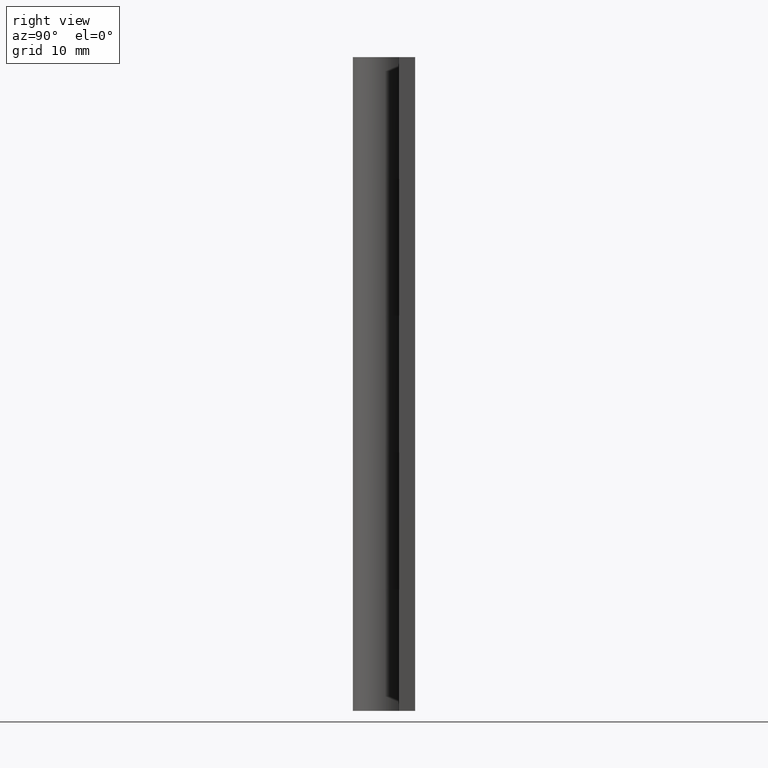
[diagram: clean part render]
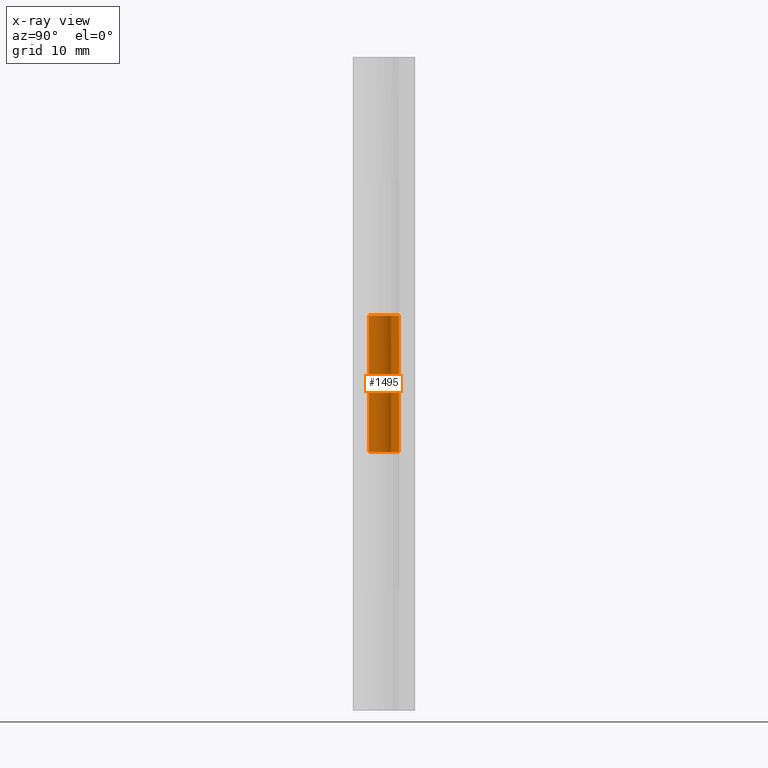
[diagram: x-ray — body ghosted, one internal face saturated and labeled with its STEP entity id]
A machine part, right view, then the same camera in x-ray: the body is ghosted and one INTERNAL B-rep face — a face not visible from any outside direction — is saturated and labeled: STEP entity #1495.
In plain terms, the highlighted face is a freeform B-spline surface patch.
Its self-contained STEP definition (entity closure, byte-faithful):
#834=CARTESIAN_POINT('',(0.0,1.500000000000000,25.699996999999900));
#835=VERTEX_POINT('',#834);
#841=CARTESIAN_POINT('',(1.325797621821316,0.701612903225807,25.699996999999900));
#842=VERTEX_POINT('',#841);
#843=CARTESIAN_POINT('',(0.0,1.500000000000000,25.699996999999900));
#844=CARTESIAN_POINT('',(-1.140047230937307,1.500000000000000,25.699996999999900));
#845=CARTESIAN_POINT('',(-1.445249296287460,0.401565027835593,25.699996999999900));
#846=CARTESIAN_POINT('',(-1.750451361637614,-0.696869944328814,25.699996999999900));
#847=CARTESIAN_POINT('',(-0.773815431857394,-1.284994037892532,25.699996999999900));
#848=CARTESIAN_POINT('',(0.202820497922826,-1.873118131456251,25.699996999999900));
#849=CARTESIAN_POINT('',(1.030933009042892,-1.089576583295442,25.699996999999900));
#850=CARTESIAN_POINT('',(1.859045520162959,-0.306035035134632,25.699996999999900));
#851=CARTESIAN_POINT('',(1.325797621821315,0.701612903225807,25.699996999999900));
#859=(BOUNDED_CURVE()B_SPLINE_CURVE(2,(#843,#844,#845,#846,#847,#848,#849,#850,#851),.UNSPECIFIED.,.F.,.U.)B_SPLINE_CURVE_WITH_KNOTS((3,2,2,2,3),(0.0,0.250000000000000,0.500000000000000,0.750000000000000,1.0),.UNSPECIFIED.)CURVE()GEOMETRIC_REPRESENTATION_ITEM()RATIONAL_B_SPLINE_CURVE((1.0,0.796150117301085,1.0,0.796150117301085,1.0,0.796150117301085,1.0,0.796150117301085,1.0))REPRESENTATION_ITEM(''));
#860=EDGE_CURVE('',#835,#842,#859,.T.);
#1024=CARTESIAN_POINT('',(0.0,1.500000000000000,39.300003000000054));
#1025=VERTEX_POINT('',#1024);
#1067=CARTESIAN_POINT('',(1.325797621821316,0.701612903225807,39.300003000000054));
#1068=VERTEX_POINT('',#1067);
#1074=CARTESIAN_POINT('',(1.325797621821315,0.701612903225807,39.300003000000054));
#1075=CARTESIAN_POINT('',(1.859045520162958,-0.306035035134631,39.300003000000054));
#1076=CARTESIAN_POINT('',(1.030933009042893,-1.089576583295441,39.300003000000054));
#1077=CARTESIAN_POINT('',(0.202820497922826,-1.873118131456252,39.300003000000054));
#1078=CARTESIAN_POINT('',(-0.773815431857395,-1.284994037892532,39.300003000000054));
#1079=CARTESIAN_POINT('',(-1.750451361637615,-0.696869944328813,39.300003000000054));
#1080=CARTESIAN_POINT('',(-1.445249296287460,0.401565027835593,39.300003000000054));
#1081=CARTESIAN_POINT('',(-1.140047230937307,1.500000000000000,39.300003000000054));
#1082=CARTESIAN_POINT('',(0.0,1.500000000000000,39.300003000000054));
#1090=(BOUNDED_CURVE()B_SPLINE_CURVE(2,(#1074,#1075,#1076,#1077,#1078,#1079,#1080,#1081,#1082),.UNSPECIFIED.,.F.,.U.)B_SPLINE_CURVE_WITH_KNOTS((3,2,2,2,3),(0.0,0.250000000000000,0.500000000000000,0.750000000000000,1.0),.UNSPECIFIED.)CURVE()GEOMETRIC_REPRESENTATION_ITEM()RATIONAL_B_SPLINE_CURVE((1.0,0.796150117301085,1.0,0.796150117301085,1.0,0.796150117301085,1.0,0.796150117301085,1.0))REPRESENTATION_ITEM(''));
#1091=EDGE_CURVE('',#1068,#1025,#1090,.T.);
#1335=CARTESIAN_POINT('',(1.325797621821316,0.701612903225807,25.699996999999900));
#1336=CARTESIAN_POINT('',(1.325797621821316,0.701612903225807,39.300003000000054));
#1337=QUASI_UNIFORM_CURVE('',1,(#1335,#1336),.UNSPECIFIED.,.F.,.U.);
#1338=EDGE_CURVE('',#842,#1068,#1337,.T.);
#1457=CARTESIAN_POINT('',(0.0,1.500000000000000,25.699996999999900));
#1458=CARTESIAN_POINT('',(0.0,1.500000000000000,39.300003000000054));
#1459=QUASI_UNIFORM_CURVE('',1,(#1457,#1458),.UNSPECIFIED.,.F.,.U.);
#1460=EDGE_CURVE('',#835,#1025,#1459,.T.);
#1467=CARTESIAN_POINT('',(1.305533543909849,0.738635340155200,25.359996849999892));
#1468=CARTESIAN_POINT('',(1.305533543909849,0.738635340155200,39.648503153750063));
#1469=CARTESIAN_POINT('',(2.206899179836648,-0.854523027792384,25.359996849999895));
#1470=CARTESIAN_POINT('',(2.206899179836648,-0.854523027792384,39.648503153750056));
#1471=CARTESIAN_POINT('',(0.467673291524516,-1.425230399758097,25.359996849999892));
#1472=CARTESIAN_POINT('',(0.467673291524516,-1.425230399758097,39.648503153750063));
#1473=CARTESIAN_POINT('',(-1.271552596787615,-1.995937771723809,25.359996849999895));
#1474=CARTESIAN_POINT('',(-1.271552596787615,-1.995937771723809,39.648503153750056));
#1475=CARTESIAN_POINT('',(-1.489344683148763,-0.178472448228038,25.359996849999892));
#1476=CARTESIAN_POINT('',(-1.489344683148763,-0.178472448228038,39.648503153750063));
#1477=CARTESIAN_POINT('',(-1.707136769509911,1.638992875267735,25.359996849999895));
#1478=CARTESIAN_POINT('',(-1.707136769509911,1.638992875267735,39.648503153750056));
#1479=CARTESIAN_POINT('',(0.117688643591768,1.495376000599692,25.359996849999892));
#1480=CARTESIAN_POINT('',(0.117688643591768,1.495376000599692,39.648503153750063));
#1488=(BOUNDED_SURFACE()B_SPLINE_SURFACE(1,2,((#1467,#1469,#1471,#1473,#1475,#1477,#1479),(#1468,#1470,#1472,#1474,#1476,#1478,#1480)),.UNSPECIFIED.,.F.,.F.,.U.)B_SPLINE_SURFACE_WITH_KNOTS((2,2),(3,2,2,3),(0.0,14.288506303750170),(0.0,2.840458804494715,5.680917608989430,8.521376413484145),.UNSPECIFIED.)GEOMETRIC_REPRESENTATION_ITEM()RATIONAL_B_SPLINE_SURFACE(((1.0,0.633830967398710,1.0,0.633830967398710,1.0,0.633830967398710,1.0),(1.0,0.633830967398710,1.0,0.633830967398710,1.0,0.633830967398710,1.0)))REPRESENTATION_ITEM('')SURFACE());
#1489=ORIENTED_EDGE('',*,*,#860,.F.);
#1490=ORIENTED_EDGE('',*,*,#1460,.T.);
#1491=ORIENTED_EDGE('',*,*,#1091,.F.);
#1492=ORIENTED_EDGE('',*,*,#1338,.F.);
#1493=EDGE_LOOP('',(#1489,#1490,#1491,#1492));
#1494=FACE_OUTER_BOUND('',#1493,.T.);
#1495=ADVANCED_FACE('',(#1494),#1488,.F.);